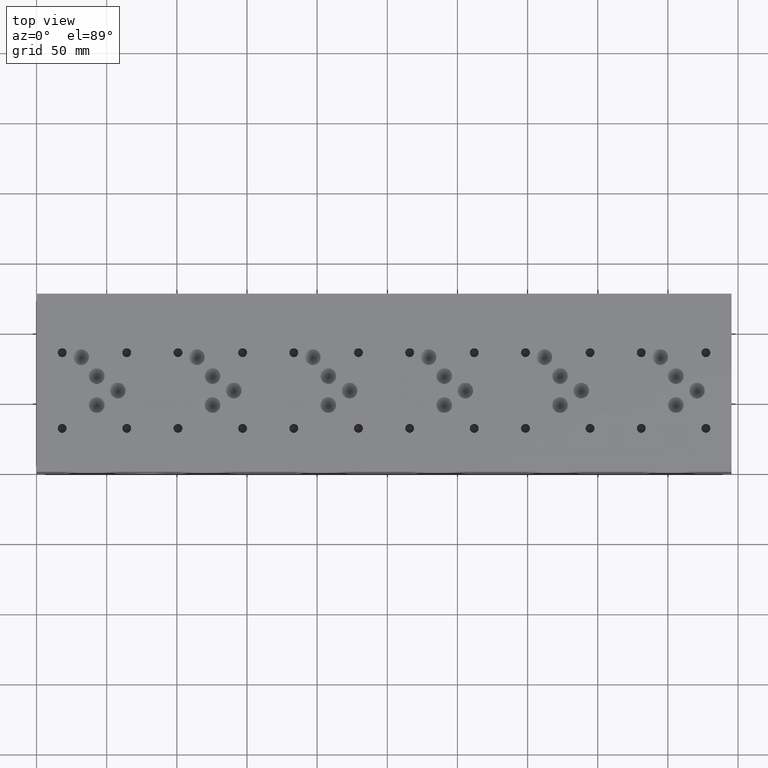
[diagram: clean part render]
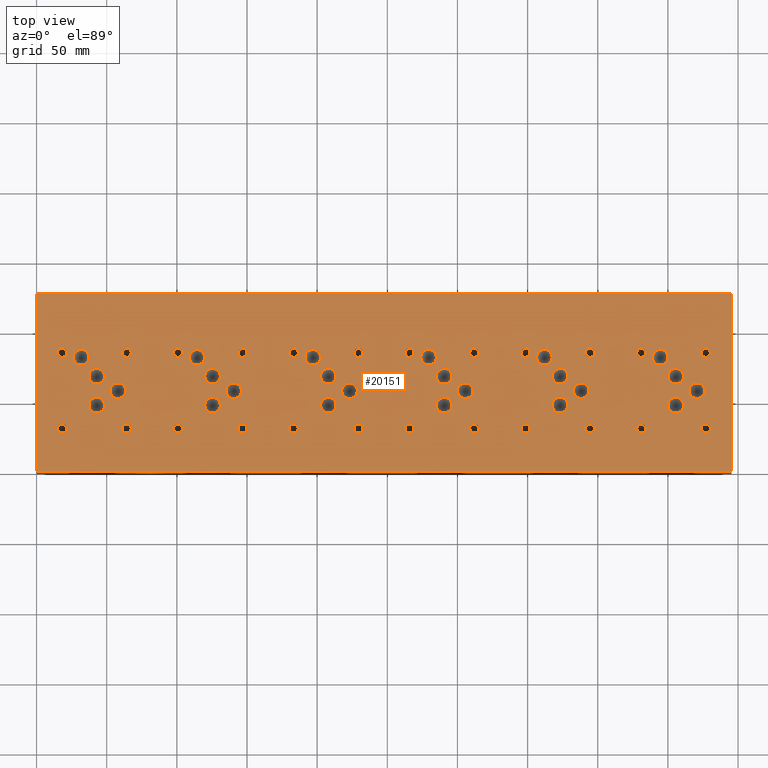
[diagram: same view with one face highlighted and labeled with its STEP entity id]
A machine part, top view. The second image highlights one B-rep face of the part: STEP entity #20151.
In plain terms, the highlighted planar face has unit normal (0, 0, 1).
Its self-contained STEP definition (entity closure, byte-faithful):
#942=CIRCLE('',#21212,5.55625);
#943=CIRCLE('',#21213,5.55625);
#946=CIRCLE('',#21218,5.55625);
#947=CIRCLE('',#21219,5.55625);
#950=CIRCLE('',#21224,5.5626);
#951=CIRCLE('',#21225,5.5626);
#954=CIRCLE('',#21230,5.5626);
#955=CIRCLE('',#21231,5.5626);
#958=CIRCLE('',#21236,5.5626);
#959=CIRCLE('',#21237,5.5626);
#962=CIRCLE('',#21242,5.5626);
#963=CIRCLE('',#21243,5.5626);
#966=CIRCLE('',#21248,5.5626);
#967=CIRCLE('',#21249,5.5626);
#970=CIRCLE('',#21254,5.5626);
#971=CIRCLE('',#21255,5.5626);
#974=CIRCLE('',#21260,5.5626);
#975=CIRCLE('',#21261,5.5626);
#978=CIRCLE('',#21266,5.5626);
#979=CIRCLE('',#21267,5.5626);
#982=CIRCLE('',#21272,5.5626);
#983=CIRCLE('',#21273,5.5626);
#986=CIRCLE('',#21278,5.5626);
#987=CIRCLE('',#21279,5.5626);
#990=CIRCLE('',#21284,5.5626);
#991=CIRCLE('',#21285,5.5626);
#994=CIRCLE('',#21290,5.5626);
#995=CIRCLE('',#21291,5.5626);
#998=CIRCLE('',#21296,5.5626);
#999=CIRCLE('',#21297,5.5626);
#1002=CIRCLE('',#21302,5.5626);
#1003=CIRCLE('',#21303,5.5626);
#1006=CIRCLE('',#21308,5.5626);
#1007=CIRCLE('',#21309,5.5626);
#1010=CIRCLE('',#21314,5.5626);
#1011=CIRCLE('',#21315,5.5626);
#1014=CIRCLE('',#21320,5.5626);
#1015=CIRCLE('',#21321,5.5626);
#1018=CIRCLE('',#21326,5.5626);
#1019=CIRCLE('',#21327,5.5626);
#1022=CIRCLE('',#21332,5.5626);
#1023=CIRCLE('',#21333,5.5626);
#1026=CIRCLE('',#21338,5.5626);
#1027=CIRCLE('',#21339,5.5626);
#1030=CIRCLE('',#21344,5.5626);
#1031=CIRCLE('',#21345,5.5626);
#1034=CIRCLE('',#21350,5.5626);
#1035=CIRCLE('',#21351,5.5626);
#1041=CIRCLE('',#21360,3.175);
#1042=CIRCLE('',#21361,3.175);
#1048=CIRCLE('',#21371,3.175);
#1049=CIRCLE('',#21372,3.175);
#1055=CIRCLE('',#21382,3.175);
#1056=CIRCLE('',#21383,3.175);
#1062=CIRCLE('',#21393,3.175);
#1063=CIRCLE('',#21394,3.175);
#1069=CIRCLE('',#21404,3.175);
#1070=CIRCLE('',#21405,3.175);
#1076=CIRCLE('',#21415,3.175);
#1077=CIRCLE('',#21416,3.175);
#1083=CIRCLE('',#21426,3.175);
#1084=CIRCLE('',#21427,3.175);
#1090=CIRCLE('',#21437,3.175);
#1091=CIRCLE('',#21438,3.175);
#1097=CIRCLE('',#21448,3.175);
#1098=CIRCLE('',#21449,3.175);
#1104=CIRCLE('',#21459,3.175);
#1105=CIRCLE('',#21460,3.175);
#1111=CIRCLE('',#21470,3.175);
#1112=CIRCLE('',#21471,3.175);
#1118=CIRCLE('',#21481,3.175);
#1119=CIRCLE('',#21482,3.175);
#1125=CIRCLE('',#21492,3.175);
#1126=CIRCLE('',#21493,3.175);
#1132=CIRCLE('',#21503,3.175);
#1133=CIRCLE('',#21504,3.175);
#1139=CIRCLE('',#21514,3.175);
#1140=CIRCLE('',#21515,3.175);
#1146=CIRCLE('',#21525,3.175);
#1147=CIRCLE('',#21526,3.175);
#1153=CIRCLE('',#21536,3.175);
#1154=CIRCLE('',#21537,3.175);
#1160=CIRCLE('',#21547,3.175);
#1161=CIRCLE('',#21548,3.175);
#1167=CIRCLE('',#21558,3.175);
#1168=CIRCLE('',#21559,3.175);
#1174=CIRCLE('',#21569,3.175);
#1175=CIRCLE('',#21570,3.175);
#1181=CIRCLE('',#21580,3.175);
#1182=CIRCLE('',#21581,3.175);
#1188=CIRCLE('',#21591,3.175);
#1189=CIRCLE('',#21592,3.175);
#1195=CIRCLE('',#21602,3.175);
#1196=CIRCLE('',#21603,3.175);
#1202=CIRCLE('',#21613,3.175);
#1203=CIRCLE('',#21614,3.175);
#1848=FACE_BOUND('',#4157,.T.);
#1849=FACE_BOUND('',#4158,.T.);
#1850=FACE_BOUND('',#4159,.T.);
#1851=FACE_BOUND('',#4160,.T.);
#1852=FACE_BOUND('',#4161,.T.);
#1853=FACE_BOUND('',#4162,.T.);
#1854=FACE_BOUND('',#4163,.T.);
#1855=FACE_BOUND('',#4164,.T.);
#1856=FACE_BOUND('',#4165,.T.);
#1857=FACE_BOUND('',#4166,.T.);
#1858=FACE_BOUND('',#4167,.T.);
#1859=FACE_BOUND('',#4168,.T.);
#1860=FACE_BOUND('',#4169,.T.);
#1861=FACE_BOUND('',#4170,.T.);
#1862=FACE_BOUND('',#4171,.T.);
#1863=FACE_BOUND('',#4172,.T.);
#1864=FACE_BOUND('',#4173,.T.);
#1865=FACE_BOUND('',#4174,.T.);
#1866=FACE_BOUND('',#4175,.T.);
#1867=FACE_BOUND('',#4176,.T.);
#1868=FACE_BOUND('',#4177,.T.);
#1869=FACE_BOUND('',#4178,.T.);
#1870=FACE_BOUND('',#4179,.T.);
#1871=FACE_BOUND('',#4180,.T.);
#1872=FACE_BOUND('',#4181,.T.);
#1873=FACE_BOUND('',#4182,.T.);
#1874=FACE_BOUND('',#4183,.T.);
#1875=FACE_BOUND('',#4184,.T.);
#1876=FACE_BOUND('',#4185,.T.);
#1877=FACE_BOUND('',#4186,.T.);
#1878=FACE_BOUND('',#4187,.T.);
#1879=FACE_BOUND('',#4188,.T.);
#1880=FACE_BOUND('',#4189,.T.);
#1881=FACE_BOUND('',#4190,.T.);
#1882=FACE_BOUND('',#4191,.T.);
#1883=FACE_BOUND('',#4192,.T.);
#1884=FACE_BOUND('',#4193,.T.);
#1885=FACE_BOUND('',#4194,.T.);
#1886=FACE_BOUND('',#4195,.T.);
#1887=FACE_BOUND('',#4196,.T.);
#1888=FACE_BOUND('',#4197,.T.);
#1889=FACE_BOUND('',#4198,.T.);
#1890=FACE_BOUND('',#4199,.T.);
#1891=FACE_BOUND('',#4200,.T.);
#1892=FACE_BOUND('',#4201,.T.);
#1893=FACE_BOUND('',#4202,.T.);
#1894=FACE_BOUND('',#4203,.T.);
#1895=FACE_BOUND('',#4204,.T.);
#2948=FACE_OUTER_BOUND('',#4156,.T.);
#4156=EDGE_LOOP('',(#17828,#17829,#17830,#17831));
#4157=EDGE_LOOP('',(#17832,#17833));
#4158=EDGE_LOOP('',(#17834,#17835));
#4159=EDGE_LOOP('',(#17836,#17837));
#4160=EDGE_LOOP('',(#17838,#17839));
#4161=EDGE_LOOP('',(#17840,#17841));
#4162=EDGE_LOOP('',(#17842,#17843));
#4163=EDGE_LOOP('',(#17844,#17845));
#4164=EDGE_LOOP('',(#17846,#17847));
#4165=EDGE_LOOP('',(#17848,#17849));
#4166=EDGE_LOOP('',(#17850,#17851));
#4167=EDGE_LOOP('',(#17852,#17853));
#4168=EDGE_LOOP('',(#17854,#17855));
#4169=EDGE_LOOP('',(#17856,#17857));
#4170=EDGE_LOOP('',(#17858,#17859));
#4171=EDGE_LOOP('',(#17860,#17861));
#4172=EDGE_LOOP('',(#17862,#17863));
#4173=EDGE_LOOP('',(#17864,#17865));
#4174=EDGE_LOOP('',(#17866,#17867));
#4175=EDGE_LOOP('',(#17868,#17869));
#4176=EDGE_LOOP('',(#17870,#17871));
#4177=EDGE_LOOP('',(#17872,#17873));
#4178=EDGE_LOOP('',(#17874,#17875));
#4179=EDGE_LOOP('',(#17876,#17877));
#4180=EDGE_LOOP('',(#17878,#17879));
#4181=EDGE_LOOP('',(#17880,#17881));
#4182=EDGE_LOOP('',(#17882,#17883));
#4183=EDGE_LOOP('',(#17884,#17885));
#4184=EDGE_LOOP('',(#17886,#17887));
#4185=EDGE_LOOP('',(#17888,#17889));
#4186=EDGE_LOOP('',(#17890,#17891));
#4187=EDGE_LOOP('',(#17892,#17893));
#4188=EDGE_LOOP('',(#17894,#17895));
#4189=EDGE_LOOP('',(#17896,#17897));
#4190=EDGE_LOOP('',(#17898,#17899));
#4191=EDGE_LOOP('',(#17900,#17901));
#4192=EDGE_LOOP('',(#17902,#17903));
#4193=EDGE_LOOP('',(#17904,#17905));
#4194=EDGE_LOOP('',(#17906,#17907));
#4195=EDGE_LOOP('',(#17908,#17909));
#4196=EDGE_LOOP('',(#17910,#17911));
#4197=EDGE_LOOP('',(#17912,#17913));
#4198=EDGE_LOOP('',(#17914,#17915));
#4199=EDGE_LOOP('',(#17916,#17917));
#4200=EDGE_LOOP('',(#17918,#17919));
#4201=EDGE_LOOP('',(#17920,#17921));
#4202=EDGE_LOOP('',(#17922,#17923));
#4203=EDGE_LOOP('',(#17924,#17925));
#4204=EDGE_LOOP('',(#17926,#17927));
#4241=LINE('',#26281,#5913);
#4772=LINE('',#29111,#6444);
#4830=LINE('',#29382,#6502);
#5877=LINE('',#35207,#7549);
#5913=VECTOR('',#21685,10.);
#6444=VECTOR('',#22470,10.);
#6502=VECTOR('',#22582,10.);
#7549=VECTOR('',#26197,10.);
#7574=VERTEX_POINT('',#26278);
#7575=VERTEX_POINT('',#26280);
#8235=VERTEX_POINT('',#29109);
#8293=VERTEX_POINT('',#29381);
#9199=VERTEX_POINT('',#34372);
#9200=VERTEX_POINT('',#34373);
#9204=VERTEX_POINT('',#34385);
#9205=VERTEX_POINT('',#34386);
#9209=VERTEX_POINT('',#34398);
#9210=VERTEX_POINT('',#34399);
#9214=VERTEX_POINT('',#34411);
#9215=VERTEX_POINT('',#34412);
#9219=VERTEX_POINT('',#34424);
#9220=VERTEX_POINT('',#34425);
#9224=VERTEX_POINT('',#34437);
#9225=VERTEX_POINT('',#34438);
#9229=VERTEX_POINT('',#34450);
#9230=VERTEX_POINT('',#34451);
#9234=VERTEX_POINT('',#34463);
#9235=VERTEX_POINT('',#34464);
#9239=VERTEX_POINT('',#34476);
#9240=VERTEX_POINT('',#34477);
#9244=VERTEX_POINT('',#34489);
#9245=VERTEX_POINT('',#34490);
#9249=VERTEX_POINT('',#34502);
#9250=VERTEX_POINT('',#34503);
#9254=VERTEX_POINT('',#34515);
#9255=VERTEX_POINT('',#34516);
#9259=VERTEX_POINT('',#34528);
#9260=VERTEX_POINT('',#34529);
#9264=VERTEX_POINT('',#34541);
#9265=VERTEX_POINT('',#34542);
#9269=VERTEX_POINT('',#34554);
#9270=VERTEX_POINT('',#34555);
#9274=VERTEX_POINT('',#34567);
#9275=VERTEX_POINT('',#34568);
#9279=VERTEX_POINT('',#34580);
#9280=VERTEX_POINT('',#34581);
#9284=VERTEX_POINT('',#34593);
#9285=VERTEX_POINT('',#34594);
#9289=VERTEX_POINT('',#34606);
#9290=VERTEX_POINT('',#34607);
#9294=VERTEX_POINT('',#34619);
#9295=VERTEX_POINT('',#34620);
#9299=VERTEX_POINT('',#34632);
#9300=VERTEX_POINT('',#34633);
#9304=VERTEX_POINT('',#34645);
#9305=VERTEX_POINT('',#34646);
#9309=VERTEX_POINT('',#34658);
#9310=VERTEX_POINT('',#34659);
#9314=VERTEX_POINT('',#34671);
#9315=VERTEX_POINT('',#34672);
#9322=VERTEX_POINT('',#34691);
#9323=VERTEX_POINT('',#34692);
#9330=VERTEX_POINT('',#34713);
#9331=VERTEX_POINT('',#34714);
#9338=VERTEX_POINT('',#34735);
#9339=VERTEX_POINT('',#34736);
#9346=VERTEX_POINT('',#34757);
#9347=VERTEX_POINT('',#34758);
#9354=VERTEX_POINT('',#34779);
#9355=VERTEX_POINT('',#34780);
#9362=VERTEX_POINT('',#34801);
#9363=VERTEX_POINT('',#34802);
#9370=VERTEX_POINT('',#34823);
#9371=VERTEX_POINT('',#34824);
#9378=VERTEX_POINT('',#34845);
#9379=VERTEX_POINT('',#34846);
#9386=VERTEX_POINT('',#34867);
#9387=VERTEX_POINT('',#34868);
#9394=VERTEX_POINT('',#34889);
#9395=VERTEX_POINT('',#34890);
#9402=VERTEX_POINT('',#34911);
#9403=VERTEX_POINT('',#34912);
#9410=VERTEX_POINT('',#34933);
#9411=VERTEX_POINT('',#34934);
#9418=VERTEX_POINT('',#34955);
#9419=VERTEX_POINT('',#34956);
#9426=VERTEX_POINT('',#34977);
#9427=VERTEX_POINT('',#34978);
#9434=VERTEX_POINT('',#34999);
#9435=VERTEX_POINT('',#35000);
#9442=VERTEX_POINT('',#35021);
#9443=VERTEX_POINT('',#35022);
#9450=VERTEX_POINT('',#35043);
#9451=VERTEX_POINT('',#35044);
#9458=VERTEX_POINT('',#35065);
#9459=VERTEX_POINT('',#35066);
#9466=VERTEX_POINT('',#35087);
#9467=VERTEX_POINT('',#35088);
#9474=VERTEX_POINT('',#35109);
#9475=VERTEX_POINT('',#35110);
#9482=VERTEX_POINT('',#35131);
#9483=VERTEX_POINT('',#35132);
#9490=VERTEX_POINT('',#35153);
#9491=VERTEX_POINT('',#35154);
#9498=VERTEX_POINT('',#35175);
#9499=VERTEX_POINT('',#35176);
#9506=VERTEX_POINT('',#35197);
#9507=VERTEX_POINT('',#35198);
#9543=EDGE_CURVE('',#7575,#7574,#4241,.T.);
#10350=EDGE_CURVE('',#7574,#8235,#4772,.T.);
#10432=EDGE_CURVE('',#8293,#7575,#4830,.T.);
#11933=EDGE_CURVE('',#9199,#9200,#942,.T.);
#11934=EDGE_CURVE('',#9200,#9199,#943,.T.);
#11939=EDGE_CURVE('',#9204,#9205,#946,.T.);
#11940=EDGE_CURVE('',#9205,#9204,#947,.T.);
#11945=EDGE_CURVE('',#9209,#9210,#950,.T.);
#11946=EDGE_CURVE('',#9210,#9209,#951,.T.);
#11951=EDGE_CURVE('',#9214,#9215,#954,.T.);
#11952=EDGE_CURVE('',#9215,#9214,#955,.T.);
#11957=EDGE_CURVE('',#9219,#9220,#958,.T.);
#11958=EDGE_CURVE('',#9220,#9219,#959,.T.);
#11963=EDGE_CURVE('',#9224,#9225,#962,.T.);
#11964=EDGE_CURVE('',#9225,#9224,#963,.T.);
#11969=EDGE_CURVE('',#9229,#9230,#966,.T.);
#11970=EDGE_CURVE('',#9230,#9229,#967,.T.);
#11975=EDGE_CURVE('',#9234,#9235,#970,.T.);
#11976=EDGE_CURVE('',#9235,#9234,#971,.T.);
#11981=EDGE_CURVE('',#9239,#9240,#974,.T.);
#11982=EDGE_CURVE('',#9240,#9239,#975,.T.);
#11987=EDGE_CURVE('',#9244,#9245,#978,.T.);
#11988=EDGE_CURVE('',#9245,#9244,#979,.T.);
#11993=EDGE_CURVE('',#9249,#9250,#982,.T.);
#11994=EDGE_CURVE('',#9250,#9249,#983,.T.);
#11999=EDGE_CURVE('',#9254,#9255,#986,.T.);
#12000=EDGE_CURVE('',#9255,#9254,#987,.T.);
#12005=EDGE_CURVE('',#9259,#9260,#990,.T.);
#12006=EDGE_CURVE('',#9260,#9259,#991,.T.);
#12011=EDGE_CURVE('',#9264,#9265,#994,.T.);
#12012=EDGE_CURVE('',#9265,#9264,#995,.T.);
#12017=EDGE_CURVE('',#9269,#9270,#998,.T.);
#12018=EDGE_CURVE('',#9270,#9269,#999,.T.);
#12023=EDGE_CURVE('',#9274,#9275,#1002,.T.);
#12024=EDGE_CURVE('',#9275,#9274,#1003,.T.);
#12029=EDGE_CURVE('',#9279,#9280,#1006,.T.);
#12030=EDGE_CURVE('',#9280,#9279,#1007,.T.);
#12035=EDGE_CURVE('',#9284,#9285,#1010,.T.);
#12036=EDGE_CURVE('',#9285,#9284,#1011,.T.);
#12041=EDGE_CURVE('',#9289,#9290,#1014,.T.);
#12042=EDGE_CURVE('',#9290,#9289,#1015,.T.);
#12047=EDGE_CURVE('',#9294,#9295,#1018,.T.);
#12048=EDGE_CURVE('',#9295,#9294,#1019,.T.);
#12053=EDGE_CURVE('',#9299,#9300,#1022,.T.);
#12054=EDGE_CURVE('',#9300,#9299,#1023,.T.);
#12059=EDGE_CURVE('',#9304,#9305,#1026,.T.);
#12060=EDGE_CURVE('',#9305,#9304,#1027,.T.);
#12065=EDGE_CURVE('',#9309,#9310,#1030,.T.);
#12066=EDGE_CURVE('',#9310,#9309,#1031,.T.);
#12071=EDGE_CURVE('',#9314,#9315,#1034,.T.);
#12072=EDGE_CURVE('',#9315,#9314,#1035,.T.);
#12080=EDGE_CURVE('',#9322,#9323,#1041,.T.);
#12081=EDGE_CURVE('',#9323,#9322,#1042,.T.);
#12090=EDGE_CURVE('',#9330,#9331,#1048,.T.);
#12091=EDGE_CURVE('',#9331,#9330,#1049,.T.);
#12100=EDGE_CURVE('',#9338,#9339,#1055,.T.);
#12101=EDGE_CURVE('',#9339,#9338,#1056,.T.);
#12110=EDGE_CURVE('',#9346,#9347,#1062,.T.);
#12111=EDGE_CURVE('',#9347,#9346,#1063,.T.);
#12120=EDGE_CURVE('',#9354,#9355,#1069,.T.);
#12121=EDGE_CURVE('',#9355,#9354,#1070,.T.);
#12130=EDGE_CURVE('',#9362,#9363,#1076,.T.);
#12131=EDGE_CURVE('',#9363,#9362,#1077,.T.);
#12140=EDGE_CURVE('',#9370,#9371,#1083,.T.);
#12141=EDGE_CURVE('',#9371,#9370,#1084,.T.);
#12150=EDGE_CURVE('',#9378,#9379,#1090,.T.);
#12151=EDGE_CURVE('',#9379,#9378,#1091,.T.);
#12160=EDGE_CURVE('',#9386,#9387,#1097,.T.);
#12161=EDGE_CURVE('',#9387,#9386,#1098,.T.);
#12170=EDGE_CURVE('',#9394,#9395,#1104,.T.);
#12171=EDGE_CURVE('',#9395,#9394,#1105,.T.);
#12180=EDGE_CURVE('',#9402,#9403,#1111,.T.);
#12181=EDGE_CURVE('',#9403,#9402,#1112,.T.);
#12190=EDGE_CURVE('',#9410,#9411,#1118,.T.);
#12191=EDGE_CURVE('',#9411,#9410,#1119,.T.);
#12200=EDGE_CURVE('',#9418,#9419,#1125,.T.);
#12201=EDGE_CURVE('',#9419,#9418,#1126,.T.);
#12210=EDGE_CURVE('',#9426,#9427,#1132,.T.);
#12211=EDGE_CURVE('',#9427,#9426,#1133,.T.);
#12220=EDGE_CURVE('',#9434,#9435,#1139,.T.);
#12221=EDGE_CURVE('',#9435,#9434,#1140,.T.);
#12230=EDGE_CURVE('',#9442,#9443,#1146,.T.);
#12231=EDGE_CURVE('',#9443,#9442,#1147,.T.);
#12240=EDGE_CURVE('',#9450,#9451,#1153,.T.);
#12241=EDGE_CURVE('',#9451,#9450,#1154,.T.);
#12250=EDGE_CURVE('',#9458,#9459,#1160,.T.);
#12251=EDGE_CURVE('',#9459,#9458,#1161,.T.);
#12260=EDGE_CURVE('',#9466,#9467,#1167,.T.);
#12261=EDGE_CURVE('',#9467,#9466,#1168,.T.);
#12270=EDGE_CURVE('',#9474,#9475,#1174,.T.);
#12271=EDGE_CURVE('',#9475,#9474,#1175,.T.);
#12280=EDGE_CURVE('',#9482,#9483,#1181,.T.);
#12281=EDGE_CURVE('',#9483,#9482,#1182,.T.);
#12290=EDGE_CURVE('',#9490,#9491,#1188,.T.);
#12291=EDGE_CURVE('',#9491,#9490,#1189,.T.);
#12300=EDGE_CURVE('',#9498,#9499,#1195,.T.);
#12301=EDGE_CURVE('',#9499,#9498,#1196,.T.);
#12310=EDGE_CURVE('',#9506,#9507,#1202,.T.);
#12311=EDGE_CURVE('',#9507,#9506,#1203,.T.);
#12315=EDGE_CURVE('',#8235,#8293,#5877,.T.);
#17828=ORIENTED_EDGE('',*,*,#9543,.T.);
#17829=ORIENTED_EDGE('',*,*,#10350,.T.);
#17830=ORIENTED_EDGE('',*,*,#12315,.T.);
#17831=ORIENTED_EDGE('',*,*,#10432,.T.);
#17832=ORIENTED_EDGE('',*,*,#11933,.T.);
#17833=ORIENTED_EDGE('',*,*,#11934,.T.);
#17834=ORIENTED_EDGE('',*,*,#11939,.T.);
#17835=ORIENTED_EDGE('',*,*,#11940,.T.);
#17836=ORIENTED_EDGE('',*,*,#11945,.T.);
#17837=ORIENTED_EDGE('',*,*,#11946,.T.);
#17838=ORIENTED_EDGE('',*,*,#11951,.T.);
#17839=ORIENTED_EDGE('',*,*,#11952,.T.);
#17840=ORIENTED_EDGE('',*,*,#11957,.T.);
#17841=ORIENTED_EDGE('',*,*,#11958,.T.);
#17842=ORIENTED_EDGE('',*,*,#11963,.T.);
#17843=ORIENTED_EDGE('',*,*,#11964,.T.);
#17844=ORIENTED_EDGE('',*,*,#11969,.T.);
#17845=ORIENTED_EDGE('',*,*,#11970,.T.);
#17846=ORIENTED_EDGE('',*,*,#11975,.T.);
#17847=ORIENTED_EDGE('',*,*,#11976,.T.);
#17848=ORIENTED_EDGE('',*,*,#11981,.T.);
#17849=ORIENTED_EDGE('',*,*,#11982,.T.);
#17850=ORIENTED_EDGE('',*,*,#11987,.T.);
#17851=ORIENTED_EDGE('',*,*,#11988,.T.);
#17852=ORIENTED_EDGE('',*,*,#11993,.T.);
#17853=ORIENTED_EDGE('',*,*,#11994,.T.);
#17854=ORIENTED_EDGE('',*,*,#11999,.T.);
#17855=ORIENTED_EDGE('',*,*,#12000,.T.);
#17856=ORIENTED_EDGE('',*,*,#12005,.T.);
#17857=ORIENTED_EDGE('',*,*,#12006,.T.);
#17858=ORIENTED_EDGE('',*,*,#12011,.T.);
#17859=ORIENTED_EDGE('',*,*,#12012,.T.);
#17860=ORIENTED_EDGE('',*,*,#12017,.T.);
#17861=ORIENTED_EDGE('',*,*,#12018,.T.);
#17862=ORIENTED_EDGE('',*,*,#12023,.T.);
#17863=ORIENTED_EDGE('',*,*,#12024,.T.);
#17864=ORIENTED_EDGE('',*,*,#12029,.T.);
#17865=ORIENTED_EDGE('',*,*,#12030,.T.);
#17866=ORIENTED_EDGE('',*,*,#12035,.T.);
#17867=ORIENTED_EDGE('',*,*,#12036,.T.);
#17868=ORIENTED_EDGE('',*,*,#12041,.T.);
#17869=ORIENTED_EDGE('',*,*,#12042,.T.);
#17870=ORIENTED_EDGE('',*,*,#12047,.T.);
#17871=ORIENTED_EDGE('',*,*,#12048,.T.);
#17872=ORIENTED_EDGE('',*,*,#12053,.T.);
#17873=ORIENTED_EDGE('',*,*,#12054,.T.);
#17874=ORIENTED_EDGE('',*,*,#12059,.T.);
#17875=ORIENTED_EDGE('',*,*,#12060,.T.);
#17876=ORIENTED_EDGE('',*,*,#12065,.T.);
#17877=ORIENTED_EDGE('',*,*,#12066,.T.);
#17878=ORIENTED_EDGE('',*,*,#12071,.T.);
#17879=ORIENTED_EDGE('',*,*,#12072,.T.);
#17880=ORIENTED_EDGE('',*,*,#12080,.T.);
#17881=ORIENTED_EDGE('',*,*,#12081,.T.);
#17882=ORIENTED_EDGE('',*,*,#12090,.T.);
#17883=ORIENTED_EDGE('',*,*,#12091,.T.);
#17884=ORIENTED_EDGE('',*,*,#12100,.T.);
#17885=ORIENTED_EDGE('',*,*,#12101,.T.);
#17886=ORIENTED_EDGE('',*,*,#12110,.T.);
#17887=ORIENTED_EDGE('',*,*,#12111,.T.);
#17888=ORIENTED_EDGE('',*,*,#12120,.T.);
#17889=ORIENTED_EDGE('',*,*,#12121,.T.);
#17890=ORIENTED_EDGE('',*,*,#12130,.T.);
#17891=ORIENTED_EDGE('',*,*,#12131,.T.);
#17892=ORIENTED_EDGE('',*,*,#12140,.T.);
#17893=ORIENTED_EDGE('',*,*,#12141,.T.);
#17894=ORIENTED_EDGE('',*,*,#12150,.T.);
#17895=ORIENTED_EDGE('',*,*,#12151,.T.);
#17896=ORIENTED_EDGE('',*,*,#12160,.T.);
#17897=ORIENTED_EDGE('',*,*,#12161,.T.);
#17898=ORIENTED_EDGE('',*,*,#12170,.T.);
#17899=ORIENTED_EDGE('',*,*,#12171,.T.);
#17900=ORIENTED_EDGE('',*,*,#12180,.T.);
#17901=ORIENTED_EDGE('',*,*,#12181,.T.);
#17902=ORIENTED_EDGE('',*,*,#12190,.T.);
#17903=ORIENTED_EDGE('',*,*,#12191,.T.);
#17904=ORIENTED_EDGE('',*,*,#12200,.T.);
#17905=ORIENTED_EDGE('',*,*,#12201,.T.);
#17906=ORIENTED_EDGE('',*,*,#12210,.T.);
#17907=ORIENTED_EDGE('',*,*,#12211,.T.);
#17908=ORIENTED_EDGE('',*,*,#12220,.T.);
#17909=ORIENTED_EDGE('',*,*,#12221,.T.);
#17910=ORIENTED_EDGE('',*,*,#12230,.T.);
#17911=ORIENTED_EDGE('',*,*,#12231,.T.);
#17912=ORIENTED_EDGE('',*,*,#12240,.T.);
#17913=ORIENTED_EDGE('',*,*,#12241,.T.);
#17914=ORIENTED_EDGE('',*,*,#12250,.T.);
#17915=ORIENTED_EDGE('',*,*,#12251,.T.);
#17916=ORIENTED_EDGE('',*,*,#12260,.T.);
#17917=ORIENTED_EDGE('',*,*,#12261,.T.);
#17918=ORIENTED_EDGE('',*,*,#12270,.T.);
#17919=ORIENTED_EDGE('',*,*,#12271,.T.);
#17920=ORIENTED_EDGE('',*,*,#12280,.T.);
#17921=ORIENTED_EDGE('',*,*,#12281,.T.);
#17922=ORIENTED_EDGE('',*,*,#12290,.T.);
#17923=ORIENTED_EDGE('',*,*,#12291,.T.);
#17924=ORIENTED_EDGE('',*,*,#12300,.T.);
#17925=ORIENTED_EDGE('',*,*,#12301,.T.);
#17926=ORIENTED_EDGE('',*,*,#12310,.T.);
#17927=ORIENTED_EDGE('',*,*,#12311,.T.);
#18440=PLANE('',#21620);
#20151=ADVANCED_FACE('',(#2948,#1848,#1849,#1850,#1851,#1852,#1853,#1854,
#1855,#1856,#1857,#1858,#1859,#1860,#1861,#1862,#1863,#1864,#1865,#1866,
#1867,#1868,#1869,#1870,#1871,#1872,#1873,#1874,#1875,#1876,#1877,#1878,
#1879,#1880,#1881,#1882,#1883,#1884,#1885,#1886,#1887,#1888,#1889,#1890,
#1891,#1892,#1893,#1894,#1895),#18440,.T.);
#21212=AXIS2_PLACEMENT_3D('',#34374,#25265,#25266);
#21213=AXIS2_PLACEMENT_3D('',#34375,#25267,#25268);
#21218=AXIS2_PLACEMENT_3D('',#34387,#25279,#25280);
#21219=AXIS2_PLACEMENT_3D('',#34388,#25281,#25282);
#21224=AXIS2_PLACEMENT_3D('',#34400,#25293,#25294);
#21225=AXIS2_PLACEMENT_3D('',#34401,#25295,#25296);
#21230=AXIS2_PLACEMENT_3D('',#34413,#25307,#25308);
#21231=AXIS2_PLACEMENT_3D('',#34414,#25309,#25310);
#21236=AXIS2_PLACEMENT_3D('',#34426,#25321,#25322);
#21237=AXIS2_PLACEMENT_3D('',#34427,#25323,#25324);
#21242=AXIS2_PLACEMENT_3D('',#34439,#25335,#25336);
#21243=AXIS2_PLACEMENT_3D('',#34440,#25337,#25338);
#21248=AXIS2_PLACEMENT_3D('',#34452,#25349,#25350);
#21249=AXIS2_PLACEMENT_3D('',#34453,#25351,#25352);
#21254=AXIS2_PLACEMENT_3D('',#34465,#25363,#25364);
#21255=AXIS2_PLACEMENT_3D('',#34466,#25365,#25366);
#21260=AXIS2_PLACEMENT_3D('',#34478,#25377,#25378);
#21261=AXIS2_PLACEMENT_3D('',#34479,#25379,#25380);
#21266=AXIS2_PLACEMENT_3D('',#34491,#25391,#25392);
#21267=AXIS2_PLACEMENT_3D('',#34492,#25393,#25394);
#21272=AXIS2_PLACEMENT_3D('',#34504,#25405,#25406);
#21273=AXIS2_PLACEMENT_3D('',#34505,#25407,#25408);
#21278=AXIS2_PLACEMENT_3D('',#34517,#25419,#25420);
#21279=AXIS2_PLACEMENT_3D('',#34518,#25421,#25422);
#21284=AXIS2_PLACEMENT_3D('',#34530,#25433,#25434);
#21285=AXIS2_PLACEMENT_3D('',#34531,#25435,#25436);
#21290=AXIS2_PLACEMENT_3D('',#34543,#25447,#25448);
#21291=AXIS2_PLACEMENT_3D('',#34544,#25449,#25450);
#21296=AXIS2_PLACEMENT_3D('',#34556,#25461,#25462);
#21297=AXIS2_PLACEMENT_3D('',#34557,#25463,#25464);
#21302=AXIS2_PLACEMENT_3D('',#34569,#25475,#25476);
#21303=AXIS2_PLACEMENT_3D('',#34570,#25477,#25478);
#21308=AXIS2_PLACEMENT_3D('',#34582,#25489,#25490);
#21309=AXIS2_PLACEMENT_3D('',#34583,#25491,#25492);
#21314=AXIS2_PLACEMENT_3D('',#34595,#25503,#25504);
#21315=AXIS2_PLACEMENT_3D('',#34596,#25505,#25506);
#21320=AXIS2_PLACEMENT_3D('',#34608,#25517,#25518);
#21321=AXIS2_PLACEMENT_3D('',#34609,#25519,#25520);
#21326=AXIS2_PLACEMENT_3D('',#34621,#25531,#25532);
#21327=AXIS2_PLACEMENT_3D('',#34622,#25533,#25534);
#21332=AXIS2_PLACEMENT_3D('',#34634,#25545,#25546);
#21333=AXIS2_PLACEMENT_3D('',#34635,#25547,#25548);
#21338=AXIS2_PLACEMENT_3D('',#34647,#25559,#25560);
#21339=AXIS2_PLACEMENT_3D('',#34648,#25561,#25562);
#21344=AXIS2_PLACEMENT_3D('',#34660,#25573,#25574);
#21345=AXIS2_PLACEMENT_3D('',#34661,#25575,#25576);
#21350=AXIS2_PLACEMENT_3D('',#34673,#25587,#25588);
#21351=AXIS2_PLACEMENT_3D('',#34674,#25589,#25590);
#21360=AXIS2_PLACEMENT_3D('',#34693,#25609,#25610);
#21361=AXIS2_PLACEMENT_3D('',#34694,#25611,#25612);
#21371=AXIS2_PLACEMENT_3D('',#34715,#25634,#25635);
#21372=AXIS2_PLACEMENT_3D('',#34716,#25636,#25637);
#21382=AXIS2_PLACEMENT_3D('',#34737,#25659,#25660);
#21383=AXIS2_PLACEMENT_3D('',#34738,#25661,#25662);
#21393=AXIS2_PLACEMENT_3D('',#34759,#25684,#25685);
#21394=AXIS2_PLACEMENT_3D('',#34760,#25686,#25687);
#21404=AXIS2_PLACEMENT_3D('',#34781,#25709,#25710);
#21405=AXIS2_PLACEMENT_3D('',#34782,#25711,#25712);
#21415=AXIS2_PLACEMENT_3D('',#34803,#25734,#25735);
#21416=AXIS2_PLACEMENT_3D('',#34804,#25736,#25737);
#21426=AXIS2_PLACEMENT_3D('',#34825,#25759,#25760);
#21427=AXIS2_PLACEMENT_3D('',#34826,#25761,#25762);
#21437=AXIS2_PLACEMENT_3D('',#34847,#25784,#25785);
#21438=AXIS2_PLACEMENT_3D('',#34848,#25786,#25787);
#21448=AXIS2_PLACEMENT_3D('',#34869,#25809,#25810);
#21449=AXIS2_PLACEMENT_3D('',#34870,#25811,#25812);
#21459=AXIS2_PLACEMENT_3D('',#34891,#25834,#25835);
#21460=AXIS2_PLACEMENT_3D('',#34892,#25836,#25837);
#21470=AXIS2_PLACEMENT_3D('',#34913,#25859,#25860);
#21471=AXIS2_PLACEMENT_3D('',#34914,#25861,#25862);
#21481=AXIS2_PLACEMENT_3D('',#34935,#25884,#25885);
#21482=AXIS2_PLACEMENT_3D('',#34936,#25886,#25887);
#21492=AXIS2_PLACEMENT_3D('',#34957,#25909,#25910);
#21493=AXIS2_PLACEMENT_3D('',#34958,#25911,#25912);
#21503=AXIS2_PLACEMENT_3D('',#34979,#25934,#25935);
#21504=AXIS2_PLACEMENT_3D('',#34980,#25936,#25937);
#21514=AXIS2_PLACEMENT_3D('',#35001,#25959,#25960);
#21515=AXIS2_PLACEMENT_3D('',#35002,#25961,#25962);
#21525=AXIS2_PLACEMENT_3D('',#35023,#25984,#25985);
#21526=AXIS2_PLACEMENT_3D('',#35024,#25986,#25987);
#21536=AXIS2_PLACEMENT_3D('',#35045,#26009,#26010);
#21537=AXIS2_PLACEMENT_3D('',#35046,#26011,#26012);
#21547=AXIS2_PLACEMENT_3D('',#35067,#26034,#26035);
#21548=AXIS2_PLACEMENT_3D('',#35068,#26036,#26037);
#21558=AXIS2_PLACEMENT_3D('',#35089,#26059,#26060);
#21559=AXIS2_PLACEMENT_3D('',#35090,#26061,#26062);
#21569=AXIS2_PLACEMENT_3D('',#35111,#26084,#26085);
#21570=AXIS2_PLACEMENT_3D('',#35112,#26086,#26087);
#21580=AXIS2_PLACEMENT_3D('',#35133,#26109,#26110);
#21581=AXIS2_PLACEMENT_3D('',#35134,#26111,#26112);
#21591=AXIS2_PLACEMENT_3D('',#35155,#26134,#26135);
#21592=AXIS2_PLACEMENT_3D('',#35156,#26136,#26137);
#21602=AXIS2_PLACEMENT_3D('',#35177,#26159,#26160);
#21603=AXIS2_PLACEMENT_3D('',#35178,#26161,#26162);
#21613=AXIS2_PLACEMENT_3D('',#35199,#26184,#26185);
#21614=AXIS2_PLACEMENT_3D('',#35200,#26186,#26187);
#21620=AXIS2_PLACEMENT_3D('',#35210,#26202,#26203);
#21685=DIRECTION('',(1.,0.,0.));
#22470=DIRECTION('',(0.,1.,0.));
#22582=DIRECTION('',(0.,-1.,0.));
#25265=DIRECTION('center_axis',(0.,0.,-1.));
#25266=DIRECTION('ref_axis',(1.,0.,0.));
#25267=DIRECTION('center_axis',(0.,0.,-1.));
#25268=DIRECTION('ref_axis',(1.,0.,0.));
#25279=DIRECTION('center_axis',(0.,0.,-1.));
#25280=DIRECTION('ref_axis',(1.,0.,0.));
#25281=DIRECTION('center_axis',(0.,0.,-1.));
#25282=DIRECTION('ref_axis',(1.,0.,0.));
#25293=DIRECTION('center_axis',(0.,0.,-1.));
#25294=DIRECTION('ref_axis',(1.,0.,0.));
#25295=DIRECTION('center_axis',(0.,0.,-1.));
#25296=DIRECTION('ref_axis',(1.,0.,0.));
#25307=DIRECTION('center_axis',(0.,0.,-1.));
#25308=DIRECTION('ref_axis',(1.,0.,0.));
#25309=DIRECTION('center_axis',(0.,0.,-1.));
#25310=DIRECTION('ref_axis',(1.,0.,0.));
#25321=DIRECTION('center_axis',(0.,0.,-1.));
#25322=DIRECTION('ref_axis',(1.,0.,0.));
#25323=DIRECTION('center_axis',(0.,0.,-1.));
#25324=DIRECTION('ref_axis',(1.,0.,0.));
#25335=DIRECTION('center_axis',(0.,0.,-1.));
#25336=DIRECTION('ref_axis',(1.,0.,0.));
#25337=DIRECTION('center_axis',(0.,0.,-1.));
#25338=DIRECTION('ref_axis',(1.,0.,0.));
#25349=DIRECTION('center_axis',(0.,0.,-1.));
#25350=DIRECTION('ref_axis',(1.,0.,0.));
#25351=DIRECTION('center_axis',(0.,0.,-1.));
#25352=DIRECTION('ref_axis',(1.,0.,0.));
#25363=DIRECTION('center_axis',(0.,0.,-1.));
#25364=DIRECTION('ref_axis',(1.,0.,0.));
#25365=DIRECTION('center_axis',(0.,0.,-1.));
#25366=DIRECTION('ref_axis',(1.,0.,0.));
#25377=DIRECTION('center_axis',(0.,0.,-1.));
#25378=DIRECTION('ref_axis',(1.,0.,0.));
#25379=DIRECTION('center_axis',(0.,0.,-1.));
#25380=DIRECTION('ref_axis',(1.,0.,0.));
#25391=DIRECTION('center_axis',(0.,0.,-1.));
#25392=DIRECTION('ref_axis',(1.,0.,0.));
#25393=DIRECTION('center_axis',(0.,0.,-1.));
#25394=DIRECTION('ref_axis',(1.,0.,0.));
#25405=DIRECTION('center_axis',(0.,0.,-1.));
#25406=DIRECTION('ref_axis',(1.,0.,0.));
#25407=DIRECTION('center_axis',(0.,0.,-1.));
#25408=DIRECTION('ref_axis',(1.,0.,0.));
#25419=DIRECTION('center_axis',(0.,0.,-1.));
#25420=DIRECTION('ref_axis',(1.,0.,0.));
#25421=DIRECTION('center_axis',(0.,0.,-1.));
#25422=DIRECTION('ref_axis',(1.,0.,0.));
#25433=DIRECTION('center_axis',(0.,0.,-1.));
#25434=DIRECTION('ref_axis',(1.,0.,0.));
#25435=DIRECTION('center_axis',(0.,0.,-1.));
#25436=DIRECTION('ref_axis',(1.,0.,0.));
#25447=DIRECTION('center_axis',(0.,0.,-1.));
#25448=DIRECTION('ref_axis',(1.,0.,0.));
#25449=DIRECTION('center_axis',(0.,0.,-1.));
#25450=DIRECTION('ref_axis',(1.,0.,0.));
#25461=DIRECTION('center_axis',(0.,0.,-1.));
#25462=DIRECTION('ref_axis',(1.,0.,0.));
#25463=DIRECTION('center_axis',(0.,0.,-1.));
#25464=DIRECTION('ref_axis',(1.,0.,0.));
#25475=DIRECTION('center_axis',(0.,0.,-1.));
#25476=DIRECTION('ref_axis',(1.,0.,0.));
#25477=DIRECTION('center_axis',(0.,0.,-1.));
#25478=DIRECTION('ref_axis',(1.,0.,0.));
#25489=DIRECTION('center_axis',(0.,0.,-1.));
#25490=DIRECTION('ref_axis',(1.,0.,0.));
#25491=DIRECTION('center_axis',(0.,0.,-1.));
#25492=DIRECTION('ref_axis',(1.,0.,0.));
#25503=DIRECTION('center_axis',(0.,0.,-1.));
#25504=DIRECTION('ref_axis',(1.,0.,0.));
#25505=DIRECTION('center_axis',(0.,0.,-1.));
#25506=DIRECTION('ref_axis',(1.,0.,0.));
#25517=DIRECTION('center_axis',(0.,0.,-1.));
#25518=DIRECTION('ref_axis',(1.,0.,0.));
#25519=DIRECTION('center_axis',(0.,0.,-1.));
#25520=DIRECTION('ref_axis',(1.,0.,0.));
#25531=DIRECTION('center_axis',(0.,0.,-1.));
#25532=DIRECTION('ref_axis',(1.,0.,0.));
#25533=DIRECTION('center_axis',(0.,0.,-1.));
#25534=DIRECTION('ref_axis',(1.,0.,0.));
#25545=DIRECTION('center_axis',(0.,0.,-1.));
#25546=DIRECTION('ref_axis',(1.,0.,0.));
#25547=DIRECTION('center_axis',(0.,0.,-1.));
#25548=DIRECTION('ref_axis',(1.,0.,0.));
#25559=DIRECTION('center_axis',(0.,0.,-1.));
#25560=DIRECTION('ref_axis',(1.,0.,0.));
#25561=DIRECTION('center_axis',(0.,0.,-1.));
#25562=DIRECTION('ref_axis',(1.,0.,0.));
#25573=DIRECTION('center_axis',(0.,0.,-1.));
#25574=DIRECTION('ref_axis',(1.,0.,0.));
#25575=DIRECTION('center_axis',(0.,0.,-1.));
#25576=DIRECTION('ref_axis',(1.,0.,0.));
#25587=DIRECTION('center_axis',(0.,0.,-1.));
#25588=DIRECTION('ref_axis',(1.,0.,0.));
#25589=DIRECTION('center_axis',(0.,0.,-1.));
#25590=DIRECTION('ref_axis',(1.,0.,0.));
#25609=DIRECTION('center_axis',(0.,0.,-1.));
#25610=DIRECTION('ref_axis',(1.,0.,0.));
#25611=DIRECTION('center_axis',(0.,0.,-1.));
#25612=DIRECTION('ref_axis',(1.,0.,0.));
#25634=DIRECTION('center_axis',(0.,0.,-1.));
#25635=DIRECTION('ref_axis',(1.,0.,0.));
#25636=DIRECTION('center_axis',(0.,0.,-1.));
#25637=DIRECTION('ref_axis',(1.,0.,0.));
#25659=DIRECTION('center_axis',(0.,0.,-1.));
#25660=DIRECTION('ref_axis',(1.,0.,0.));
#25661=DIRECTION('center_axis',(0.,0.,-1.));
#25662=DIRECTION('ref_axis',(1.,0.,0.));
#25684=DIRECTION('center_axis',(0.,0.,-1.));
#25685=DIRECTION('ref_axis',(1.,0.,0.));
#25686=DIRECTION('center_axis',(0.,0.,-1.));
#25687=DIRECTION('ref_axis',(1.,0.,0.));
#25709=DIRECTION('center_axis',(0.,0.,-1.));
#25710=DIRECTION('ref_axis',(1.,0.,0.));
#25711=DIRECTION('center_axis',(0.,0.,-1.));
#25712=DIRECTION('ref_axis',(1.,0.,0.));
#25734=DIRECTION('center_axis',(0.,0.,-1.));
#25735=DIRECTION('ref_axis',(1.,0.,0.));
#25736=DIRECTION('center_axis',(0.,0.,-1.));
#25737=DIRECTION('ref_axis',(1.,0.,0.));
#25759=DIRECTION('center_axis',(0.,0.,-1.));
#25760=DIRECTION('ref_axis',(1.,0.,0.));
#25761=DIRECTION('center_axis',(0.,0.,-1.));
#25762=DIRECTION('ref_axis',(1.,0.,0.));
#25784=DIRECTION('center_axis',(0.,0.,-1.));
#25785=DIRECTION('ref_axis',(1.,0.,0.));
#25786=DIRECTION('center_axis',(0.,0.,-1.));
#25787=DIRECTION('ref_axis',(1.,0.,0.));
#25809=DIRECTION('center_axis',(0.,0.,-1.));
#25810=DIRECTION('ref_axis',(1.,0.,0.));
#25811=DIRECTION('center_axis',(0.,0.,-1.));
#25812=DIRECTION('ref_axis',(1.,0.,0.));
#25834=DIRECTION('center_axis',(0.,0.,-1.));
#25835=DIRECTION('ref_axis',(1.,0.,0.));
#25836=DIRECTION('center_axis',(0.,0.,-1.));
#25837=DIRECTION('ref_axis',(1.,0.,0.));
#25859=DIRECTION('center_axis',(0.,0.,-1.));
#25860=DIRECTION('ref_axis',(1.,0.,0.));
#25861=DIRECTION('center_axis',(0.,0.,-1.));
#25862=DIRECTION('ref_axis',(1.,0.,0.));
#25884=DIRECTION('center_axis',(0.,0.,-1.));
#25885=DIRECTION('ref_axis',(1.,0.,0.));
#25886=DIRECTION('center_axis',(0.,0.,-1.));
#25887=DIRECTION('ref_axis',(1.,0.,0.));
#25909=DIRECTION('center_axis',(0.,0.,-1.));
#25910=DIRECTION('ref_axis',(1.,0.,0.));
#25911=DIRECTION('center_axis',(0.,0.,-1.));
#25912=DIRECTION('ref_axis',(1.,0.,0.));
#25934=DIRECTION('center_axis',(0.,0.,-1.));
#25935=DIRECTION('ref_axis',(1.,0.,0.));
#25936=DIRECTION('center_axis',(0.,0.,-1.));
#25937=DIRECTION('ref_axis',(1.,0.,0.));
#25959=DIRECTION('center_axis',(0.,0.,-1.));
#25960=DIRECTION('ref_axis',(1.,0.,0.));
#25961=DIRECTION('center_axis',(0.,0.,-1.));
#25962=DIRECTION('ref_axis',(1.,0.,0.));
#25984=DIRECTION('center_axis',(0.,0.,-1.));
#25985=DIRECTION('ref_axis',(1.,0.,0.));
#25986=DIRECTION('center_axis',(0.,0.,-1.));
#25987=DIRECTION('ref_axis',(1.,0.,0.));
#26009=DIRECTION('center_axis',(0.,0.,-1.));
#26010=DIRECTION('ref_axis',(1.,0.,0.));
#26011=DIRECTION('center_axis',(0.,0.,-1.));
#26012=DIRECTION('ref_axis',(1.,0.,0.));
#26034=DIRECTION('center_axis',(0.,0.,-1.));
#26035=DIRECTION('ref_axis',(1.,0.,0.));
#26036=DIRECTION('center_axis',(0.,0.,-1.));
#26037=DIRECTION('ref_axis',(1.,0.,0.));
#26059=DIRECTION('center_axis',(0.,0.,-1.));
#26060=DIRECTION('ref_axis',(1.,0.,0.));
#26061=DIRECTION('center_axis',(0.,0.,-1.));
#26062=DIRECTION('ref_axis',(1.,0.,0.));
#26084=DIRECTION('center_axis',(0.,0.,-1.));
#26085=DIRECTION('ref_axis',(1.,0.,0.));
#26086=DIRECTION('center_axis',(0.,0.,-1.));
#26087=DIRECTION('ref_axis',(1.,0.,0.));
#26109=DIRECTION('center_axis',(0.,0.,-1.));
#26110=DIRECTION('ref_axis',(1.,0.,0.));
#26111=DIRECTION('center_axis',(0.,0.,-1.));
#26112=DIRECTION('ref_axis',(1.,0.,0.));
#26134=DIRECTION('center_axis',(0.,0.,-1.));
#26135=DIRECTION('ref_axis',(1.,0.,0.));
#26136=DIRECTION('center_axis',(0.,0.,-1.));
#26137=DIRECTION('ref_axis',(1.,0.,0.));
#26159=DIRECTION('center_axis',(0.,0.,-1.));
#26160=DIRECTION('ref_axis',(1.,0.,0.));
#26161=DIRECTION('center_axis',(0.,0.,-1.));
#26162=DIRECTION('ref_axis',(1.,0.,0.));
#26184=DIRECTION('center_axis',(0.,0.,-1.));
#26185=DIRECTION('ref_axis',(1.,0.,0.));
#26186=DIRECTION('center_axis',(0.,0.,-1.));
#26187=DIRECTION('ref_axis',(1.,0.,0.));
#26197=DIRECTION('',(-1.,0.,0.));
#26202=DIRECTION('center_axis',(0.,0.,1.));
#26203=DIRECTION('ref_axis',(1.,0.,0.));
#26278=CARTESIAN_POINT('',(495.3,0.,101.6));
#26280=CARTESIAN_POINT('',(0.,0.,101.6));
#26281=CARTESIAN_POINT('',(0.,0.,101.6));
#29109=CARTESIAN_POINT('',(495.3,127.,101.6));
#29111=CARTESIAN_POINT('',(495.3,0.,101.6));
#29381=CARTESIAN_POINT('',(0.,127.,101.6));
#29382=CARTESIAN_POINT('',(0.,127.,101.6));
#34372=CARTESIAN_POINT('',(48.41875,68.15328,101.6));
#34373=CARTESIAN_POINT('',(37.30625,68.15328,101.6));
#34374=CARTESIAN_POINT('Origin',(42.8625,68.15328,101.6));
#34375=CARTESIAN_POINT('Origin',(42.8625,68.15328,101.6));
#34385=CARTESIAN_POINT('',(48.42383,47.51832,101.6));
#34386=CARTESIAN_POINT('',(37.31133,47.51832,101.6));
#34387=CARTESIAN_POINT('Origin',(42.86758,47.51832,101.6));
#34388=CARTESIAN_POINT('Origin',(42.86758,47.51832,101.6));
#34398=CARTESIAN_POINT('',(461.1878,68.1482,101.6));
#34399=CARTESIAN_POINT('',(450.0626,68.1482,101.6));
#34400=CARTESIAN_POINT('Origin',(455.6252,68.1482,101.6));
#34401=CARTESIAN_POINT('Origin',(455.6252,68.1482,101.6));
#34411=CARTESIAN_POINT('',(476.2754,57.8358,101.6));
#34412=CARTESIAN_POINT('',(465.1502,57.8358,101.6));
#34413=CARTESIAN_POINT('Origin',(470.7128,57.8358,101.6));
#34414=CARTESIAN_POINT('Origin',(470.7128,57.8358,101.6));
#34424=CARTESIAN_POINT('',(378.6378,68.1482,101.6));
#34425=CARTESIAN_POINT('',(367.5126,68.1482,101.6));
#34426=CARTESIAN_POINT('Origin',(373.0752,68.1482,101.6));
#34427=CARTESIAN_POINT('Origin',(373.0752,68.1482,101.6));
#34437=CARTESIAN_POINT('',(393.7254,57.8358,101.6));
#34438=CARTESIAN_POINT('',(382.6002,57.8358,101.6));
#34439=CARTESIAN_POINT('Origin',(388.1628,57.8358,101.6));
#34440=CARTESIAN_POINT('Origin',(388.1628,57.8358,101.6));
#34450=CARTESIAN_POINT('',(296.0878,68.1482,101.6));
#34451=CARTESIAN_POINT('',(284.9626,68.1482,101.6));
#34452=CARTESIAN_POINT('Origin',(290.5252,68.1482,101.6));
#34453=CARTESIAN_POINT('Origin',(290.5252,68.1482,101.6));
#34463=CARTESIAN_POINT('',(311.1754,57.8358,101.6));
#34464=CARTESIAN_POINT('',(300.0502,57.8358,101.6));
#34465=CARTESIAN_POINT('Origin',(305.6128,57.8358,101.6));
#34466=CARTESIAN_POINT('Origin',(305.6128,57.8358,101.6));
#34476=CARTESIAN_POINT('',(213.5378,68.1482,101.6));
#34477=CARTESIAN_POINT('',(202.4126,68.1482,101.6));
#34478=CARTESIAN_POINT('Origin',(207.9752,68.1482,101.6));
#34479=CARTESIAN_POINT('Origin',(207.9752,68.1482,101.6));
#34489=CARTESIAN_POINT('',(228.6254,57.8358,101.6));
#34490=CARTESIAN_POINT('',(217.5002,57.8358,101.6));
#34491=CARTESIAN_POINT('Origin',(223.0628,57.8358,101.6));
#34492=CARTESIAN_POINT('Origin',(223.0628,57.8358,101.6));
#34502=CARTESIAN_POINT('',(130.9878,68.1482,101.6));
#34503=CARTESIAN_POINT('',(119.8626,68.1482,101.6));
#34504=CARTESIAN_POINT('Origin',(125.4252,68.1482,101.6));
#34505=CARTESIAN_POINT('Origin',(125.4252,68.1482,101.6));
#34515=CARTESIAN_POINT('',(146.0754,57.8358,101.6));
#34516=CARTESIAN_POINT('',(134.9502,57.8358,101.6));
#34517=CARTESIAN_POINT('Origin',(140.5128,57.8358,101.6));
#34518=CARTESIAN_POINT('Origin',(140.5128,57.8358,101.6));
#34528=CARTESIAN_POINT('',(63.5254,57.8358,101.6));
#34529=CARTESIAN_POINT('',(52.4002,57.8358,101.6));
#34530=CARTESIAN_POINT('Origin',(57.9628,57.8358,101.6));
#34531=CARTESIAN_POINT('Origin',(57.9628,57.8358,101.6));
#34541=CARTESIAN_POINT('',(37.3126,81.661,101.6));
#34542=CARTESIAN_POINT('',(26.1874,81.661,101.6));
#34543=CARTESIAN_POINT('Origin',(31.75,81.661,101.6));
#34544=CARTESIAN_POINT('Origin',(31.75,81.661,101.6));
#34554=CARTESIAN_POINT('',(119.8626,81.661,101.6));
#34555=CARTESIAN_POINT('',(108.7374,81.661,101.6));
#34556=CARTESIAN_POINT('Origin',(114.3,81.661,101.6));
#34557=CARTESIAN_POINT('Origin',(114.3,81.661,101.6));
#34567=CARTESIAN_POINT('',(130.9878,47.5234,101.6));
#34568=CARTESIAN_POINT('',(119.8626,47.5234,101.6));
#34569=CARTESIAN_POINT('Origin',(125.4252,47.5234,101.6));
#34570=CARTESIAN_POINT('Origin',(125.4252,47.5234,101.6));
#34580=CARTESIAN_POINT('',(202.4126,81.661,101.6));
#34581=CARTESIAN_POINT('',(191.2874,81.661,101.6));
#34582=CARTESIAN_POINT('Origin',(196.85,81.661,101.6));
#34583=CARTESIAN_POINT('Origin',(196.85,81.661,101.6));
#34593=CARTESIAN_POINT('',(213.5378,47.5234,101.6));
#34594=CARTESIAN_POINT('',(202.4126,47.5234,101.6));
#34595=CARTESIAN_POINT('Origin',(207.9752,47.5234,101.6));
#34596=CARTESIAN_POINT('Origin',(207.9752,47.5234,101.6));
#34606=CARTESIAN_POINT('',(284.9626,81.661,101.6));
#34607=CARTESIAN_POINT('',(273.8374,81.661,101.6));
#34608=CARTESIAN_POINT('Origin',(279.4,81.661,101.6));
#34609=CARTESIAN_POINT('Origin',(279.4,81.661,101.6));
#34619=CARTESIAN_POINT('',(296.0878,47.5234,101.6));
#34620=CARTESIAN_POINT('',(284.9626,47.5234,101.6));
#34621=CARTESIAN_POINT('Origin',(290.5252,47.5234,101.6));
#34622=CARTESIAN_POINT('Origin',(290.5252,47.5234,101.6));
#34632=CARTESIAN_POINT('',(367.5126,81.661,101.6));
#34633=CARTESIAN_POINT('',(356.3874,81.661,101.6));
#34634=CARTESIAN_POINT('Origin',(361.95,81.661,101.6));
#34635=CARTESIAN_POINT('Origin',(361.95,81.661,101.6));
#34645=CARTESIAN_POINT('',(378.6378,47.5234,101.6));
#34646=CARTESIAN_POINT('',(367.5126,47.5234,101.6));
#34647=CARTESIAN_POINT('Origin',(373.0752,47.5234,101.6));
#34648=CARTESIAN_POINT('Origin',(373.0752,47.5234,101.6));
#34658=CARTESIAN_POINT('',(450.0626,81.661,101.6));
#34659=CARTESIAN_POINT('',(438.9374,81.661,101.6));
#34660=CARTESIAN_POINT('Origin',(444.5,81.661,101.6));
#34661=CARTESIAN_POINT('Origin',(444.5,81.661,101.6));
#34671=CARTESIAN_POINT('',(461.1878,47.5234,101.6));
#34672=CARTESIAN_POINT('',(450.0626,47.5234,101.6));
#34673=CARTESIAN_POINT('Origin',(455.6252,47.5234,101.6));
#34674=CARTESIAN_POINT('Origin',(455.6252,47.5234,101.6));
#34691=CARTESIAN_POINT('',(480.2124,30.861,101.6));
#34692=CARTESIAN_POINT('',(473.8624,30.861,101.6));
#34693=CARTESIAN_POINT('Origin',(477.0374,30.861,101.6));
#34694=CARTESIAN_POINT('Origin',(477.0374,30.861,101.6));
#34713=CARTESIAN_POINT('',(434.1622,84.836,101.6));
#34714=CARTESIAN_POINT('',(427.8122,84.836,101.6));
#34715=CARTESIAN_POINT('Origin',(430.9872,84.836,101.6));
#34716=CARTESIAN_POINT('Origin',(430.9872,84.836,101.6));
#34735=CARTESIAN_POINT('',(397.6624,30.861,101.6));
#34736=CARTESIAN_POINT('',(391.3124,30.861,101.6));
#34737=CARTESIAN_POINT('Origin',(394.4874,30.861,101.6));
#34738=CARTESIAN_POINT('Origin',(394.4874,30.861,101.6));
#34757=CARTESIAN_POINT('',(351.6122,84.836,101.6));
#34758=CARTESIAN_POINT('',(345.2622,84.836,101.6));
#34759=CARTESIAN_POINT('Origin',(348.4372,84.836,101.6));
#34760=CARTESIAN_POINT('Origin',(348.4372,84.836,101.6));
#34779=CARTESIAN_POINT('',(315.1124,30.861,101.6));
#34780=CARTESIAN_POINT('',(308.7624,30.861,101.6));
#34781=CARTESIAN_POINT('Origin',(311.9374,30.861,101.6));
#34782=CARTESIAN_POINT('Origin',(311.9374,30.861,101.6));
#34801=CARTESIAN_POINT('',(269.0622,84.836,101.6));
#34802=CARTESIAN_POINT('',(262.7122,84.836,101.6));
#34803=CARTESIAN_POINT('Origin',(265.8872,84.836,101.6));
#34804=CARTESIAN_POINT('Origin',(265.8872,84.836,101.6));
#34823=CARTESIAN_POINT('',(232.5624,30.861,101.6));
#34824=CARTESIAN_POINT('',(226.2124,30.861,101.6));
#34825=CARTESIAN_POINT('Origin',(229.3874,30.861,101.6));
#34826=CARTESIAN_POINT('Origin',(229.3874,30.861,101.6));
#34845=CARTESIAN_POINT('',(186.5122,84.836,101.6));
#34846=CARTESIAN_POINT('',(180.1622,84.836,101.6));
#34847=CARTESIAN_POINT('Origin',(183.3372,84.836,101.6));
#34848=CARTESIAN_POINT('Origin',(183.3372,84.836,101.6));
#34867=CARTESIAN_POINT('',(150.0124,30.861,101.6));
#34868=CARTESIAN_POINT('',(143.6624,30.861,101.6));
#34869=CARTESIAN_POINT('Origin',(146.8374,30.861,101.6));
#34870=CARTESIAN_POINT('Origin',(146.8374,30.861,101.6));
#34889=CARTESIAN_POINT('',(103.9622,84.836,101.6));
#34890=CARTESIAN_POINT('',(97.6122,84.836,101.6));
#34891=CARTESIAN_POINT('Origin',(100.7872,84.836,101.6));
#34892=CARTESIAN_POINT('Origin',(100.7872,84.836,101.6));
#34911=CARTESIAN_POINT('',(67.4624,30.8737,101.6));
#34912=CARTESIAN_POINT('',(61.1124,30.8737,101.6));
#34913=CARTESIAN_POINT('Origin',(64.2874,30.8737,101.6));
#34914=CARTESIAN_POINT('Origin',(64.2874,30.8737,101.6));
#34933=CARTESIAN_POINT('',(21.4122,84.836,101.6));
#34934=CARTESIAN_POINT('',(15.0622,84.836,101.6));
#34935=CARTESIAN_POINT('Origin',(18.2372,84.836,101.6));
#34936=CARTESIAN_POINT('Origin',(18.2372,84.836,101.6));
#34955=CARTESIAN_POINT('',(67.4624,84.836,101.6));
#34956=CARTESIAN_POINT('',(61.1124,84.836,101.6));
#34957=CARTESIAN_POINT('Origin',(64.2874,84.836,101.6));
#34958=CARTESIAN_POINT('Origin',(64.2874,84.836,101.6));
#34977=CARTESIAN_POINT('',(21.4122,30.861,101.6));
#34978=CARTESIAN_POINT('',(15.0622,30.861,101.6));
#34979=CARTESIAN_POINT('Origin',(18.2372,30.861,101.6));
#34980=CARTESIAN_POINT('Origin',(18.2372,30.861,101.6));
#34999=CARTESIAN_POINT('',(150.0124,84.836,101.6));
#35000=CARTESIAN_POINT('',(143.6624,84.836,101.6));
#35001=CARTESIAN_POINT('Origin',(146.8374,84.836,101.6));
#35002=CARTESIAN_POINT('Origin',(146.8374,84.836,101.6));
#35021=CARTESIAN_POINT('',(103.9622,30.861,101.6));
#35022=CARTESIAN_POINT('',(97.6122,30.861,101.6));
#35023=CARTESIAN_POINT('Origin',(100.7872,30.861,101.6));
#35024=CARTESIAN_POINT('Origin',(100.7872,30.861,101.6));
#35043=CARTESIAN_POINT('',(232.5624,84.836,101.6));
#35044=CARTESIAN_POINT('',(226.2124,84.836,101.6));
#35045=CARTESIAN_POINT('Origin',(229.3874,84.836,101.6));
#35046=CARTESIAN_POINT('Origin',(229.3874,84.836,101.6));
#35065=CARTESIAN_POINT('',(186.5122,30.861,101.6));
#35066=CARTESIAN_POINT('',(180.1622,30.861,101.6));
#35067=CARTESIAN_POINT('Origin',(183.3372,30.861,101.6));
#35068=CARTESIAN_POINT('Origin',(183.3372,30.861,101.6));
#35087=CARTESIAN_POINT('',(315.1124,84.836,101.6));
#35088=CARTESIAN_POINT('',(308.7624,84.836,101.6));
#35089=CARTESIAN_POINT('Origin',(311.9374,84.836,101.6));
#35090=CARTESIAN_POINT('Origin',(311.9374,84.836,101.6));
#35109=CARTESIAN_POINT('',(269.0622,30.861,101.6));
#35110=CARTESIAN_POINT('',(262.7122,30.861,101.6));
#35111=CARTESIAN_POINT('Origin',(265.8872,30.861,101.6));
#35112=CARTESIAN_POINT('Origin',(265.8872,30.861,101.6));
#35131=CARTESIAN_POINT('',(397.6624,84.836,101.6));
#35132=CARTESIAN_POINT('',(391.3124,84.836,101.6));
#35133=CARTESIAN_POINT('Origin',(394.4874,84.836,101.6));
#35134=CARTESIAN_POINT('Origin',(394.4874,84.836,101.6));
#35153=CARTESIAN_POINT('',(351.6122,30.861,101.6));
#35154=CARTESIAN_POINT('',(345.2622,30.861,101.6));
#35155=CARTESIAN_POINT('Origin',(348.4372,30.861,101.6));
#35156=CARTESIAN_POINT('Origin',(348.4372,30.861,101.6));
#35175=CARTESIAN_POINT('',(480.2124,84.836,101.6));
#35176=CARTESIAN_POINT('',(473.8624,84.836,101.6));
#35177=CARTESIAN_POINT('Origin',(477.0374,84.836,101.6));
#35178=CARTESIAN_POINT('Origin',(477.0374,84.836,101.6));
#35197=CARTESIAN_POINT('',(434.1622,30.861,101.6));
#35198=CARTESIAN_POINT('',(427.8122,30.861,101.6));
#35199=CARTESIAN_POINT('Origin',(430.9872,30.861,101.6));
#35200=CARTESIAN_POINT('Origin',(430.9872,30.861,101.6));
#35207=CARTESIAN_POINT('',(495.3,127.,101.6));
#35210=CARTESIAN_POINT('Origin',(247.65,63.5,101.6));